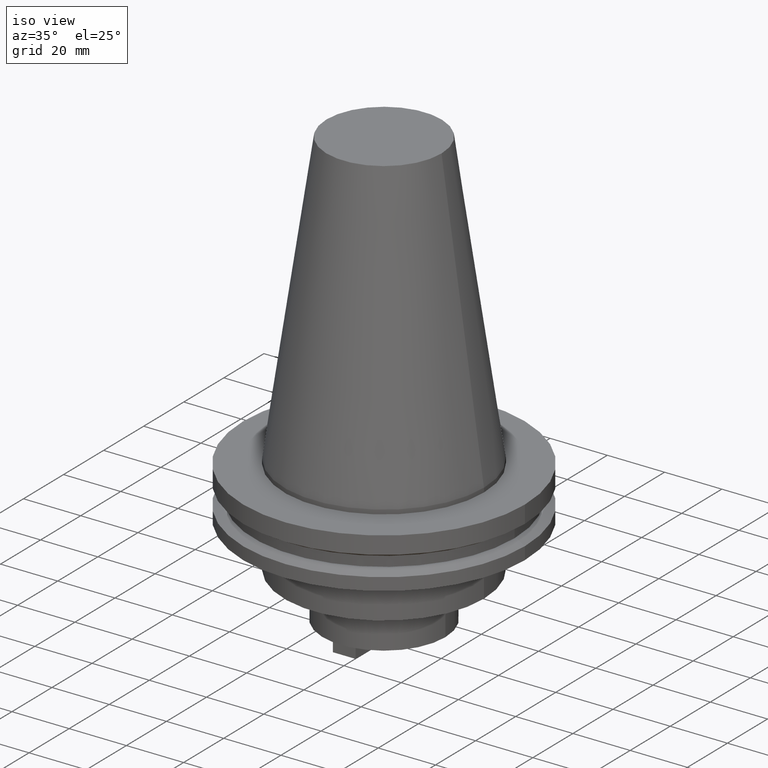
[diagram: clean part render]
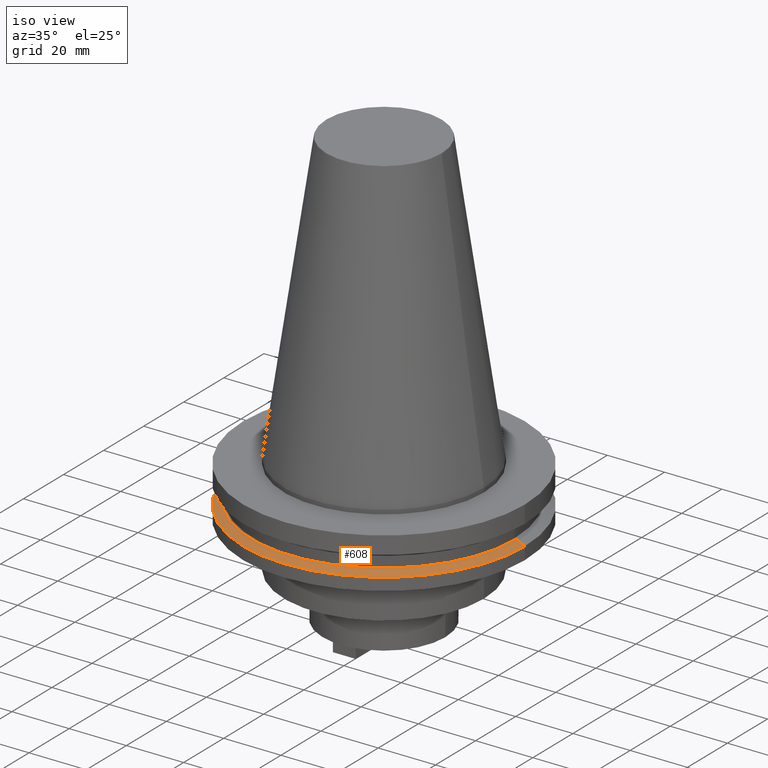
[diagram: same view with one face highlighted and labeled with its STEP entity id]
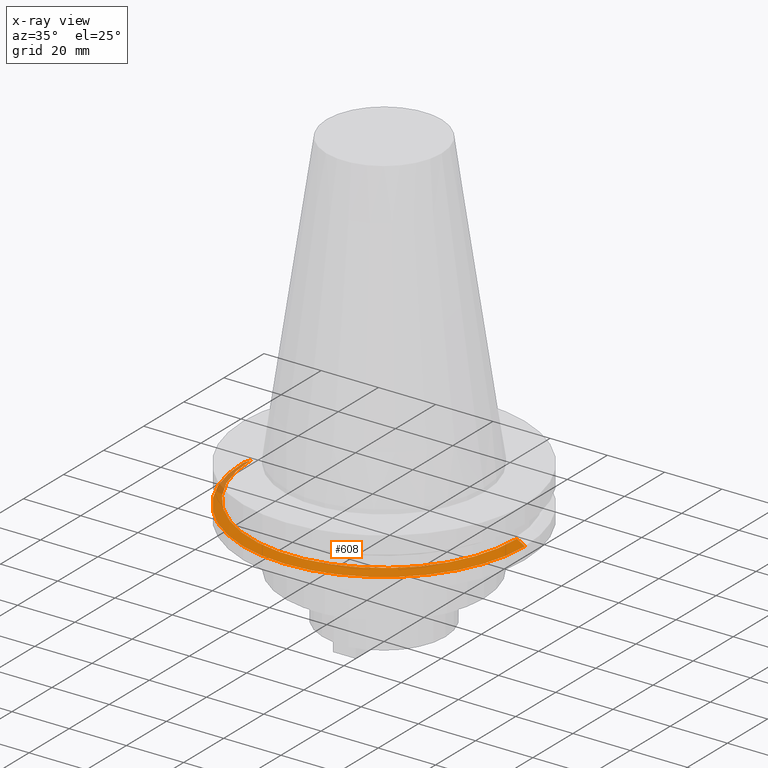
[diagram: x-ray of the same camera — body ghosted, the highlighted face saturated]
A machine part, iso view. The second image highlights one B-rep face of the part: STEP entity #608.
The next image is the same camera in x-ray: the body ghosted, the highlighted face saturated — about 5% of this face is hidden behind the body in this view.
In plain terms, the highlighted conical surface has half-angle 60 deg.
Its self-contained STEP definition (entity closure, byte-faithful):
#12 = LINE ( 'NONE', #859, #275 ) ;
#15 = CARTESIAN_POINT ( 'NONE',  ( 0.000000000000000000, 0.000000000000000000, -14.65761014474876944 ) ) ;
#80 = DIRECTION ( 'NONE',  ( -1.000000000000000000, 0.000000000000000000, 0.000000000000000000 ) ) ;
#111 = CARTESIAN_POINT ( 'NONE',  ( -49.21499999999998920, 6.027099222003697037E-15, -14.65761014474876944 ) ) ;
#116 = ORIENTED_EDGE ( 'NONE', *, *, #1010, .F. ) ;
#159 = CARTESIAN_POINT ( 'NONE',  ( 49.21499999999998920, 6.027099222003697037E-15, -14.65761014474876944 ) ) ;
#166 = CARTESIAN_POINT ( 'NONE',  ( 0.000000000000000000, 0.000000000000000000, -14.65761014474876944 ) ) ;
#176 = DIRECTION ( 'NONE',  ( -0.000000000000000000, -0.000000000000000000, 1.000000000000000000 ) ) ;
#210 = CARTESIAN_POINT ( 'NONE',  ( 46.43919780457007818, 5.857130358318725715E-15, -13.05499999999999794 ) ) ;
#213 = VERTEX_POINT ( 'NONE', #834 ) ;
#215 = AXIS2_PLACEMENT_3D ( 'NONE', #659, #894, #832 ) ;
#270 = CIRCLE ( 'NONE', #215, 46.43919780457007818 ) ;
#274 = AXIS2_PLACEMENT_3D ( 'NONE', #166, #357, #80 ) ;
#275 = VECTOR ( 'NONE', #778, 1000.000000000000114 ) ;
#311 = ORIENTED_EDGE ( 'NONE', *, *, #377, .T. ) ;
#337 = VERTEX_POINT ( 'NONE', #210 ) ;
#357 = DIRECTION ( 'NONE',  ( 0.000000000000000000, 0.000000000000000000, -1.000000000000000000 ) ) ;
#377 = EDGE_CURVE ( 'NONE', #643, #811, #12, .T. ) ;
#394 = CIRCLE ( 'NONE', #447, 49.21499999999998920 ) ;
#422 = CARTESIAN_POINT ( 'NONE',  ( -46.43919780457007818, 0.000000000000000000, -13.05499999999999794 ) ) ;
#435 = FACE_OUTER_BOUND ( 'NONE', #934, .T. ) ;
#447 = AXIS2_PLACEMENT_3D ( 'NONE', #15, #176, #513 ) ;
#513 = DIRECTION ( 'NONE',  ( 1.000000000000000000, 0.000000000000000000, 0.000000000000000000 ) ) ;
#598 = ORIENTED_EDGE ( 'NONE', *, *, #701, .T. ) ;
#608 = ADVANCED_FACE ( 'NONE', ( #435 ), #1048, .T. ) ;
#643 = VERTEX_POINT ( 'NONE', #422 ) ;
#659 = CARTESIAN_POINT ( 'NONE',  ( 0.000000000000000000, 0.000000000000000000, -13.05499999999999794 ) ) ;
#672 = DIRECTION ( 'NONE',  ( 0.8660254037844169472, 1.060575238724880168E-16, -0.5000000000000375255 ) ) ;
#691 = ORIENTED_EDGE ( 'NONE', *, *, #970, .F. ) ;
#701 = EDGE_CURVE ( 'NONE', #811, #213, #394, .T. ) ;
#726 = VECTOR ( 'NONE', #672, 1000.000000000000114 ) ;
#738 = LINE ( 'NONE', #159, #726 ) ;
#778 = DIRECTION ( 'NONE',  ( -0.8660254037844169472, 0.000000000000000000, -0.5000000000000375255 ) ) ;
#811 = VERTEX_POINT ( 'NONE', #111 ) ;
#832 = DIRECTION ( 'NONE',  ( 1.000000000000000000, 0.000000000000000000, 0.000000000000000000 ) ) ;
#834 = CARTESIAN_POINT ( 'NONE',  ( 49.21499999999998920, 0.000000000000000000, -14.65761014474876944 ) ) ;
#859 = CARTESIAN_POINT ( 'NONE',  ( -49.21499999999998920, 0.000000000000000000, -14.65761014474876944 ) ) ;
#894 = DIRECTION ( 'NONE',  ( -0.000000000000000000, -0.000000000000000000, 1.000000000000000000 ) ) ;
#934 = EDGE_LOOP ( 'NONE', ( #116, #691, #311, #598 ) ) ;
#970 = EDGE_CURVE ( 'NONE', #643, #337, #270, .T. ) ;
#1010 = EDGE_CURVE ( 'NONE', #337, #213, #738, .T. ) ;
#1048 = CONICAL_SURFACE ( 'NONE', #274, 49.21499999999998920, 1.047197551196554333 ) ;